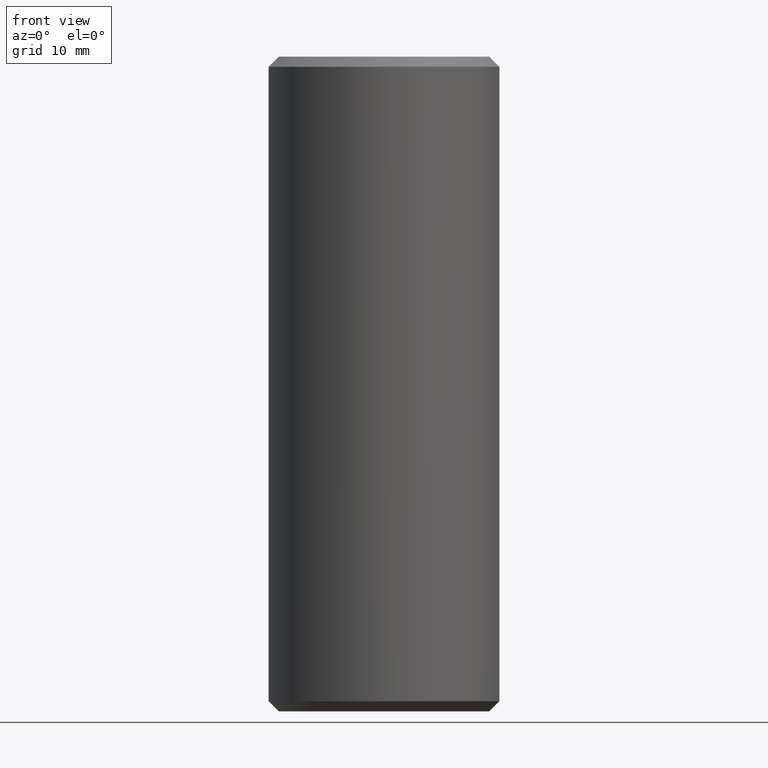
[diagram: clean part render]
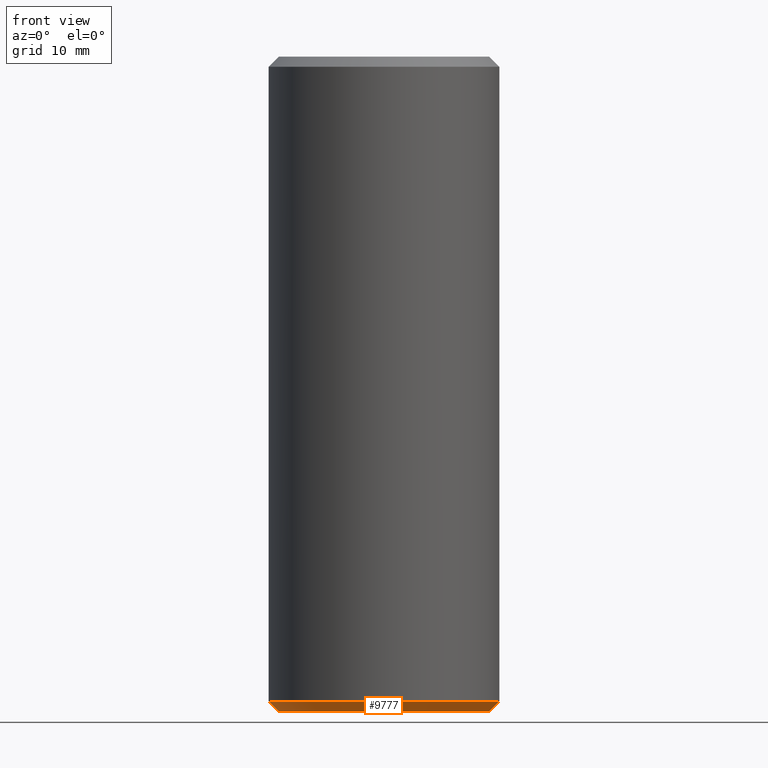
[diagram: same view with one face highlighted and labeled with its STEP entity id]
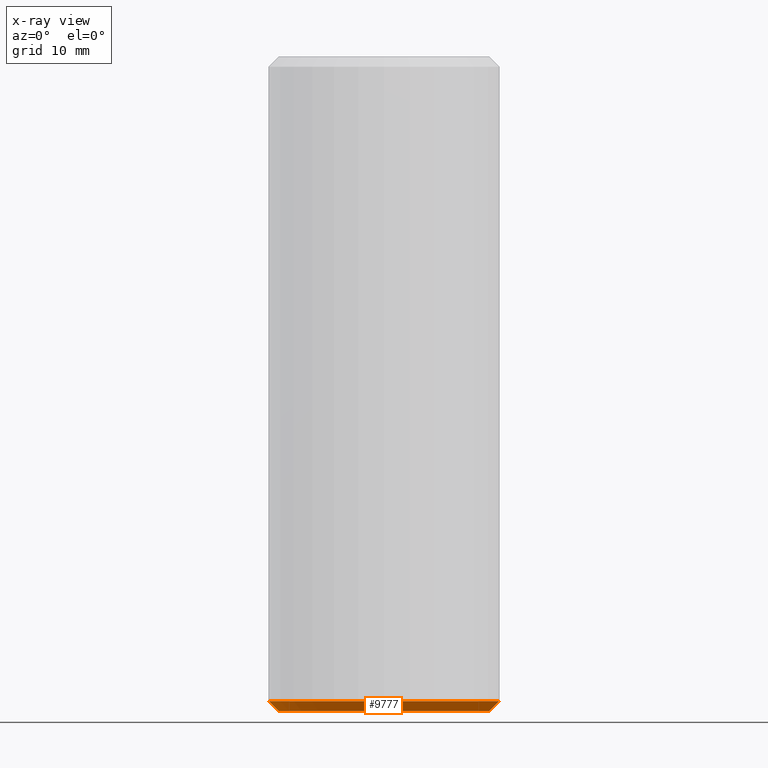
[diagram: x-ray of the same camera — body ghosted, the highlighted face saturated]
A machine part, front view. The second image highlights one B-rep face of the part: STEP entity #9777.
The next image is the same camera in x-ray: the body ghosted, the highlighted face saturated — about 0% of this face is hidden behind the body in this view.
In plain terms, the highlighted conical surface has half-angle 45 deg.
Its self-contained STEP definition (entity closure, byte-faithful):
#467 = DIRECTION ( 'NONE',  ( -0.0000000000000000000, -0.0000000000000000000, 1.000000000000000000 ) ) ;
#598 = EDGE_LOOP ( 'NONE', ( #9332, #10450, #11493, #11069 ) ) ;
#668 = EDGE_CURVE ( 'NONE', #1132, #4751, #9970, .T. ) ;
#1132 = VERTEX_POINT ( 'NONE', #7368 ) ;
#1639 = LINE ( 'NONE', #2757, #1952 ) ;
#1952 = VECTOR ( 'NONE', #6624, 1000.000000000000100 ) ;
#2317 = CARTESIAN_POINT ( 'NONE',  ( 11.45000000000000100, 0.0000000000000000000, -31.50000000000000000 ) ) ;
#2346 = DIRECTION ( 'NONE',  ( 1.000000000000000000, 0.0000000000000000000, 0.0000000000000000000 ) ) ;
#2652 = DIRECTION ( 'NONE',  ( 1.000000000000000000, 0.0000000000000000000, 0.0000000000000000000 ) ) ;
#2757 = CARTESIAN_POINT ( 'NONE',  ( -11.45000000000000100, 1.402220585023719700E-015, -31.50000000000000000 ) ) ;
#3074 = EDGE_CURVE ( 'NONE', #4587, #3839, #1639, .T. ) ;
#3605 = CIRCLE ( 'NONE', #7869, 10.44999999999998900 ) ;
#3701 = CARTESIAN_POINT ( 'NONE',  ( 0.0000000000000000000, 0.0000000000000000000, -32.50000000000000000 ) ) ;
#3839 = VERTEX_POINT ( 'NONE', #6761 ) ;
#4265 = FACE_OUTER_BOUND ( 'NONE', #598, .T. ) ;
#4402 = CIRCLE ( 'NONE', #10803, 11.45000000000000100 ) ;
#4587 = VERTEX_POINT ( 'NONE', #6506 ) ;
#4751 = VERTEX_POINT ( 'NONE', #7236 ) ;
#4816 = DIRECTION ( 'NONE',  ( -0.0000000000000000000, -0.0000000000000000000, -1.000000000000000000 ) ) ;
#6207 = CARTESIAN_POINT ( 'NONE',  ( 0.0000000000000000000, 0.0000000000000000000, -31.50000000000000000 ) ) ;
#6506 = CARTESIAN_POINT ( 'NONE',  ( -10.44999999999998900, 1.340988245066351100E-015, -32.50000000000000000 ) ) ;
#6624 = DIRECTION ( 'NONE',  ( -0.7071067811865517900, 8.659560562354987100E-017, 0.7071067811865431300 ) ) ;
#6761 = CARTESIAN_POINT ( 'NONE',  ( -11.45000000000000100, 0.0000000000000000000, -31.50000000000000000 ) ) ;
#7236 = CARTESIAN_POINT ( 'NONE',  ( 11.45000000000000100, 1.402220585023719700E-015, -31.50000000000000000 ) ) ;
#7368 = CARTESIAN_POINT ( 'NONE',  ( 10.44999999999998900, 0.0000000000000000000, -32.50000000000000000 ) ) ;
#7869 = AXIS2_PLACEMENT_3D ( 'NONE', #3701, #4816, #2652 ) ;
#7946 = AXIS2_PLACEMENT_3D ( 'NONE', #6207, #8167, #2346 ) ;
#8167 = DIRECTION ( 'NONE',  ( -0.0000000000000000000, -0.0000000000000000000, 1.000000000000000000 ) ) ;
#8456 = CONICAL_SURFACE ( 'NONE', #7946, 11.45000000000000100, 0.7853981633974543900 ) ;
#9233 = VECTOR ( 'NONE', #9900, 1000.000000000000100 ) ;
#9332 = ORIENTED_EDGE ( 'NONE', *, *, #3074, .F. ) ;
#9777 = ADVANCED_FACE ( 'NONE', ( #4265 ), #8456, .T. ) ;
#9900 = DIRECTION ( 'NONE',  ( 0.7071067811865517900, 0.0000000000000000000, 0.7071067811865431300 ) ) ;
#9970 = LINE ( 'NONE', #2317, #9233 ) ;
#10450 = ORIENTED_EDGE ( 'NONE', *, *, #11634, .F. ) ;
#10803 = AXIS2_PLACEMENT_3D ( 'NONE', #12018, #467, #10924 ) ;
#10924 = DIRECTION ( 'NONE',  ( 1.000000000000000000, 0.0000000000000000000, 0.0000000000000000000 ) ) ;
#11069 = ORIENTED_EDGE ( 'NONE', *, *, #11095, .F. ) ;
#11095 = EDGE_CURVE ( 'NONE', #3839, #4751, #4402, .T. ) ;
#11493 = ORIENTED_EDGE ( 'NONE', *, *, #668, .T. ) ;
#11634 = EDGE_CURVE ( 'NONE', #1132, #4587, #3605, .T. ) ;
#12018 = CARTESIAN_POINT ( 'NONE',  ( 0.0000000000000000000, 0.0000000000000000000, -31.50000000000000000 ) ) ;